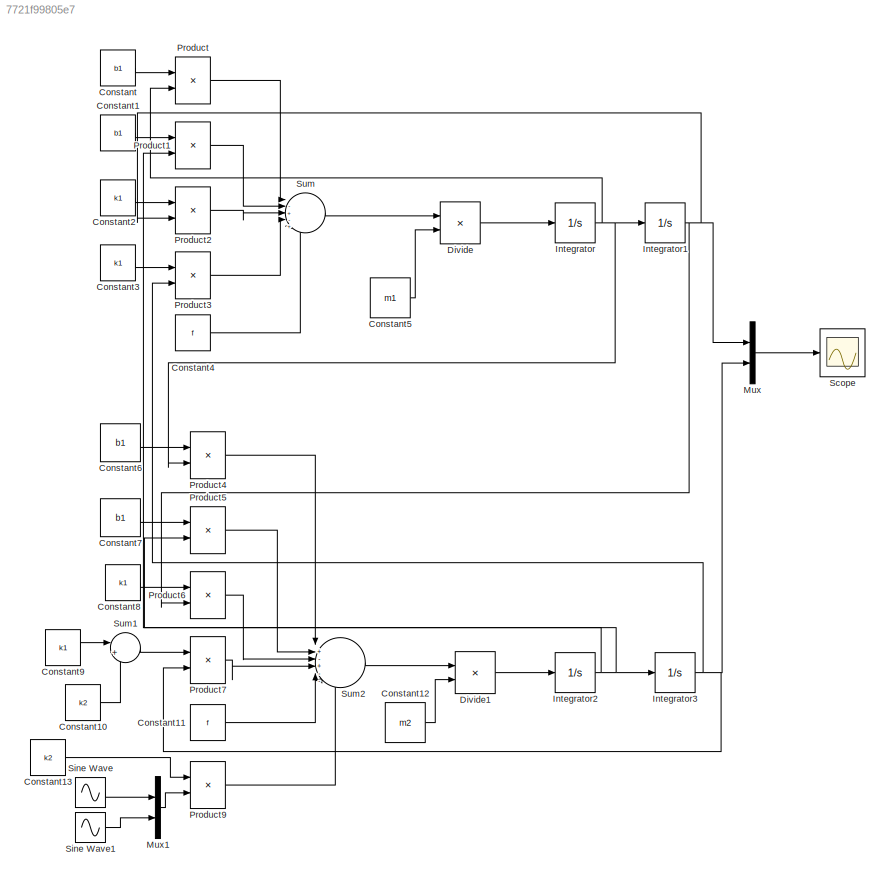
MODEL slx_7721f99805e7
KIND model
CONFIG AbsTol = auto
CONFIG EnableMultiTasking = off
CONFIG FixedStep = auto
CONFIG MaxStep = auto
CONFIG MinStep = auto
CONFIG RelTol = 1e-3
CONFIG SampleTimeConstraint = Unconstrained
CONFIG SolverName = VariableStepAuto
CONFIG StartTime = 0.0
CONFIG StopTime = 10.0
BLOCK [Constant] Constant
  Value = b1
BLOCK [Constant] Constant1
  Value = b1
BLOCK [Constant] Constant10
  Value = k2
BLOCK [Constant] Constant11
  Value = f
BLOCK [Constant] Constant12
  Value = m2
BLOCK [Constant] Constant13
  Value = k2
BLOCK [Constant] Constant2
  Value = k1
BLOCK [Constant] Constant3
  Value = k1
BLOCK [Constant] Constant4
  Value = f
BLOCK [Constant] Constant5
  Value = m1
BLOCK [Constant] Constant6
  Value = b1
BLOCK [Constant] Constant7
  Value = b1
BLOCK [Constant] Constant8
  Value = k1
BLOCK [Constant] Constant9
  Value = k1
BLOCK [Product] Divide
  Inputs = */
BLOCK [Product] Divide1
  Inputs = */
BLOCK [Integrator] Integrator
  InitialCondition = dx1
BLOCK [Integrator] Integrator1
  InitialCondition = x1
BLOCK [Integrator] Integrator2
  InitialCondition = dx2
BLOCK [Integrator] Integrator3
  InitialCondition = x2
BLOCK [Mux] Mux
  DisplayOption = bar
  Inputs = 2
BLOCK [Mux] Mux1
  DisplayOption = bar
  Inputs = 2
BLOCK [Product] Product
BLOCK [Product] Product1
BLOCK [Product] Product2
BLOCK [Product] Product3
BLOCK [Product] Product4
BLOCK [Product] Product5
BLOCK [Product] Product6
BLOCK [Product] Product7
BLOCK [Product] Product9
BLOCK [Scope] Scope
  ActiveDisplayYMaximum = 0.080568186773229647
  ActiveDisplayYMinimum = -0.0702441559438079
  Floating = off
  GraphicalSettings = {"Style":{"BackgroundColor":[0.12941176470588237,0.12941176470588237,0.12941176470588237],"AxesColor":[0.07058823529411765,0.07058823529411765,0.07058823529411765],"LabelsColor":[0.8509803921568627,0.8509803921568627,0.8509803921568627],"PreserveColors":false,"Visible":[true,true,true,true],"LineStyle":["-","-","-","-"],"LineWidth":[1.5,1.5,1.5,1.5],"BarWidth":[0.9,0.9,0.9,0.9],"LineColor":["auto"...<+2395ch>
  MultipleDisplayCache = [{"MaxYLimMag":0.080568186773229647,"MaxYLimReal":0.080568186773229647,"MinYLimMag":0,"MinYLimReal":-0.0702441559438079,"PlotAsMagnitudePhase":false,"ShowGrid":true,"ShowLegend":false,"Title":"%<SignalLabel>","YLabel":""}]
  NumInputPorts = 1
  ScopeFrameLocation = window
  WasSavedAsWebScope = on
  WindowPosition = [568.000000,296.000000,560.000000,420.000000,]
BLOCK [Sin] Sine Wave
  Amplitude = 0.05
  Frequency = 0.5*pi
  SampleTime = 0
BLOCK [Sin] Sine Wave1
  Amplitude = 0.05
  Frequency = 20*pi
  SampleTime = 0
BLOCK [Sum] Sum
  Inputs = |-+-++
BLOCK [Sum] Sum1
  Inputs = |++
BLOCK [Sum] Sum2
  Inputs = |+-+--+
LINE Constant10:1 -> Sum1:2
LINE Constant11:1 -> Sum2:5
LINE Constant12:1 -> Divide1:2
LINE Constant13:1 -> Product9:1
LINE Constant1:1 -> Product1:1
LINE Constant2:1 -> Product2:1
LINE Constant3:1 -> Product3:1
LINE Constant4:1 -> Sum:5
LINE Constant5:1 -> Divide:2
LINE Constant6:1 -> Product4:1
LINE Constant7:1 -> Product5:1
LINE Constant8:1 -> Product6:1
LINE Constant9:1 -> Sum1:1
LINE Constant:1 -> Product:1
LINE Divide1:1 -> Integrator2:1
LINE Divide:1 -> Integrator:1
NET Integrator1:1 -> Mux:1, Product2:2, Product6:2
NET Integrator2:1 -> Integrator3:1, Product1:2, Product5:2
NET Integrator3:1 -> Mux:2, Product3:2, Product7:2
NET Integrator:1 -> Integrator1:1, Product4:2, Product:2
LINE Mux1:1 -> Product9:2
LINE Mux:1 -> Scope:1
LINE Product1:1 -> Sum:2
LINE Product2:1 -> Sum:3
LINE Product3:1 -> Sum:4
LINE Product4:1 -> Sum2:1
LINE Product5:1 -> Sum2:2
LINE Product6:1 -> Sum2:3
LINE Product7:1 -> Sum2:4
LINE Product9:1 -> Sum2:6
LINE Product:1 -> Sum:1
LINE Sine Wave1:1 -> Mux1:2
LINE Sine Wave:1 -> Mux1:1
LINE Sum1:1 -> Product7:1
LINE Sum2:1 -> Divide1:1
LINE Sum:1 -> Divide:1
note: NET lines group one-source signal fan-out (src -> all destinations, sorted); 1:1 wires keep LINE
